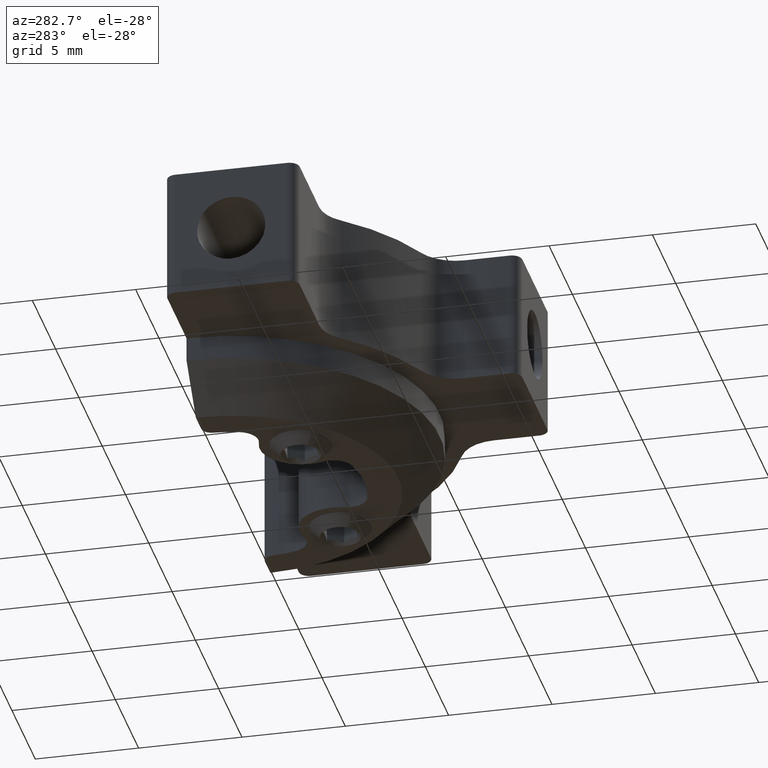
[diagram: clean part render]
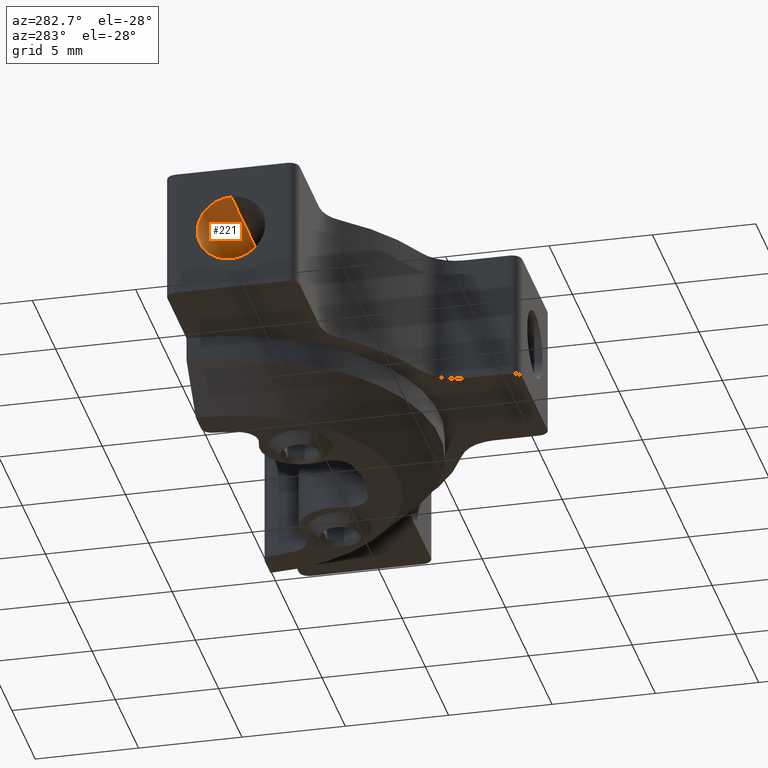
[diagram: same view with one face highlighted and labeled with its STEP entity id]
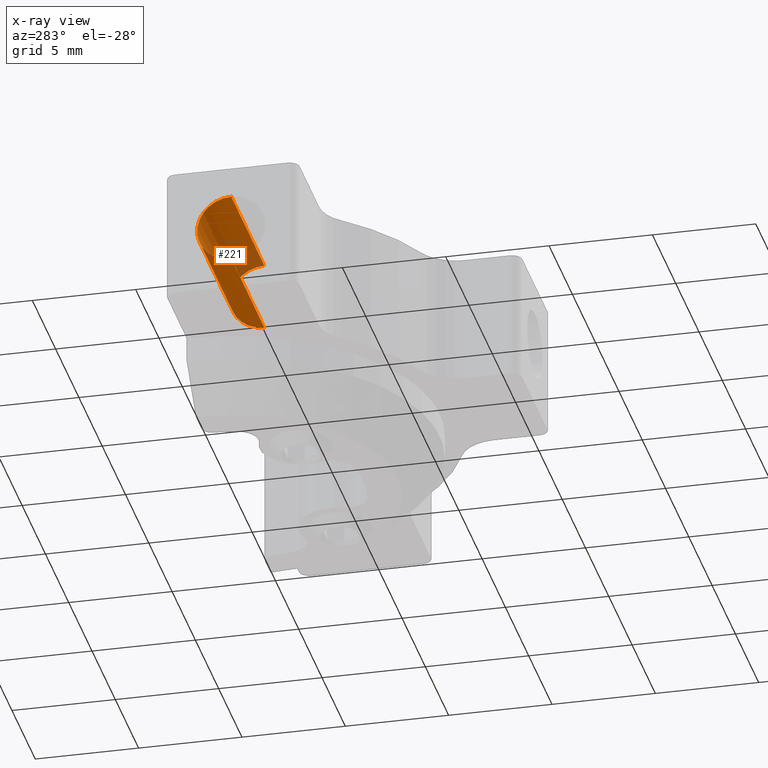
[diagram: x-ray of the same camera — body ghosted, the highlighted face saturated]
A machine part, auxiliary view. The second image highlights one B-rep face of the part: STEP entity #221.
The next image is the same camera in x-ray: the body ghosted, the highlighted face saturated — about 14% of this face is hidden behind the body in this view.
In plain terms, the highlighted cylindrical surface (edge-blend (fillet) strip) has radius 1.65 mm, axis along (-1, -0, -0).
Its self-contained STEP definition (entity closure, byte-faithful):
#180 = DIRECTION ( 'NONE',  ( 0.000000000000000000, 0.000000000000000000, 1.000000000000000000 ) ) ;
#221 = ADVANCED_FACE ( 'NONE', ( #2738 ), #2014, .F. ) ;
#292 = CARTESIAN_POINT ( 'NONE',  ( -9.416479710973556294, 2.288821372047168623, 30.20000000000000284 ) ) ;
#446 = EDGE_CURVE ( 'NONE', #1142, #614, #2592, .T. ) ;
#504 = VERTEX_POINT ( 'NONE', #624 ) ;
#589 = ORIENTED_EDGE ( 'NONE', *, *, #1783, .T. ) ;
#614 = VERTEX_POINT ( 'NONE', #2995 ) ;
#624 = CARTESIAN_POINT ( 'NONE',  ( -9.416479710973556294, 2.288821372047168623, 28.55000000000000426 ) ) ;
#759 = EDGE_CURVE ( 'NONE', #2762, #504, #2372, .T. ) ;
#784 = VECTOR ( 'NONE', #2205, 1000.000000000000000 ) ;
#940 = AXIS2_PLACEMENT_3D ( 'NONE', #292, #2300, #2069 ) ;
#964 = CARTESIAN_POINT ( 'NONE',  ( -16.51647971097355594, 2.288821372047168623, 30.20000000000000284 ) ) ;
#1142 = VERTEX_POINT ( 'NONE', #1830 ) ;
#1368 = ORIENTED_EDGE ( 'NONE', *, *, #446, .T. ) ;
#1724 = LINE ( 'NONE', #2256, #784 ) ;
#1746 = DIRECTION ( 'NONE',  ( -1.000000000000000000, -0.000000000000000000, -0.000000000000000000 ) ) ;
#1755 = ORIENTED_EDGE ( 'NONE', *, *, #2456, .F. ) ;
#1783 = EDGE_CURVE ( 'NONE', #2762, #1142, #1724, .T. ) ;
#1830 = CARTESIAN_POINT ( 'NONE',  ( -16.51647971097355949, 2.288821372047168623, 31.84999999999999787 ) ) ;
#2014 = CYLINDRICAL_SURFACE ( 'NONE', #2169, 1.649999999999991696 ) ;
#2069 = DIRECTION ( 'NONE',  ( 0.000000000000000000, 0.000000000000000000, 1.000000000000000000 ) ) ;
#2169 = AXIS2_PLACEMENT_3D ( 'NONE', #964, #1746, #180 ) ;
#2205 = DIRECTION ( 'NONE',  ( -1.000000000000000000, -0.000000000000000000, -0.000000000000000000 ) ) ;
#2248 = CARTESIAN_POINT ( 'NONE',  ( -9.416479710973556294, 2.288821372047168623, 31.85000000000000497 ) ) ;
#2256 = CARTESIAN_POINT ( 'NONE',  ( -16.51647971097355594, 2.288821372047168623, 31.84999999999999787 ) ) ;
#2300 = DIRECTION ( 'NONE',  ( -1.000000000000000000, -0.000000000000000000, -0.000000000000000000 ) ) ;
#2372 = CIRCLE ( 'NONE', #940, 1.649999999999998579 ) ;
#2380 = DIRECTION ( 'NONE',  ( -1.000000000000000000, -0.000000000000000000, -0.000000000000000000 ) ) ;
#2416 = DIRECTION ( 'NONE',  ( -1.000000000000000000, -0.000000000000000000, -0.000000000000000000 ) ) ;
#2456 = EDGE_CURVE ( 'NONE', #504, #614, #2908, .T. ) ;
#2592 = CIRCLE ( 'NONE', #2845, 1.649999999999991696 ) ;
#2660 = CARTESIAN_POINT ( 'NONE',  ( -16.51647971097355594, 2.288821372047168623, 28.55000000000000782 ) ) ;
#2738 = FACE_OUTER_BOUND ( 'NONE', #2779, .T. ) ;
#2757 = ORIENTED_EDGE ( 'NONE', *, *, #759, .F. ) ;
#2762 = VERTEX_POINT ( 'NONE', #2248 ) ;
#2779 = EDGE_LOOP ( 'NONE', ( #1755, #2757, #589, #1368 ) ) ;
#2845 = AXIS2_PLACEMENT_3D ( 'NONE', #2881, #2416, #2932 ) ;
#2881 = CARTESIAN_POINT ( 'NONE',  ( -16.51647971097355949, 2.288821372047168623, 30.20000000000000284 ) ) ;
#2908 = LINE ( 'NONE', #2660, #2971 ) ;
#2932 = DIRECTION ( 'NONE',  ( 0.000000000000000000, 0.000000000000000000, 1.000000000000000000 ) ) ;
#2971 = VECTOR ( 'NONE', #2380, 1000.000000000000000 ) ;
#2995 = CARTESIAN_POINT ( 'NONE',  ( -16.51647971097355949, 2.288821372047168623, 28.55000000000001137 ) ) ;